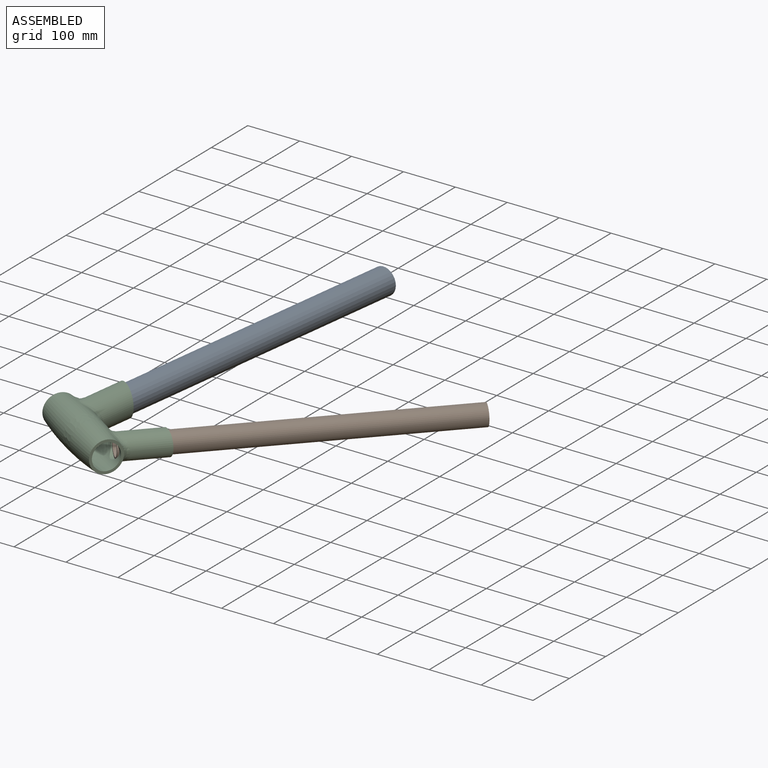
[diagram: assembled view]
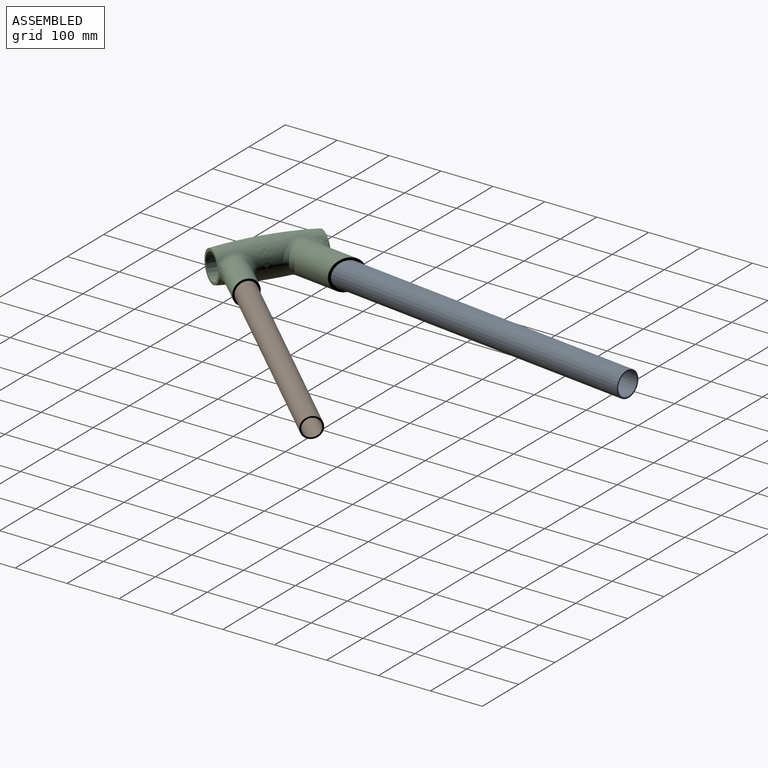
[diagram: assembled view, second angle]
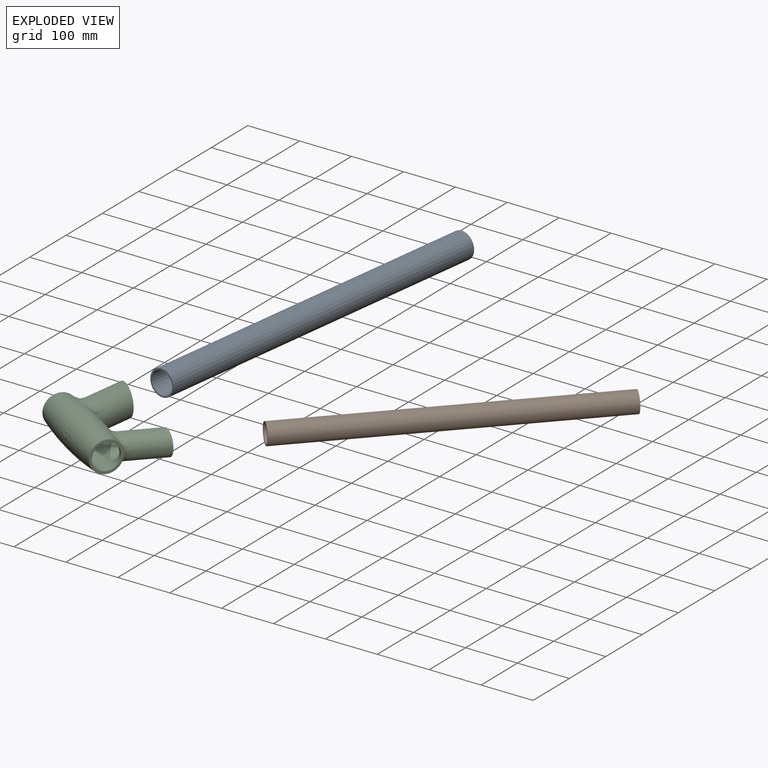
[diagram: exploded view]
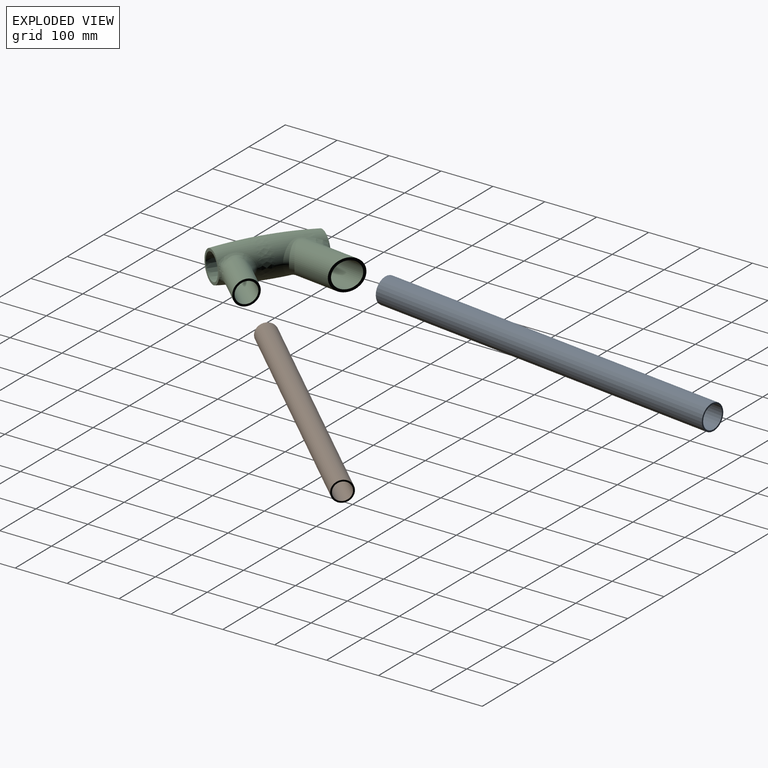
[diagram: exploded view, second angle]
ASSEMBLY  parts=3 mates=2
PART A: 4 faces, bbox 50x700x50 mm
  f0: cylinder r=22mm len=700mm, axis (0,1,0), area 96761.1mm2, adj f2,f3
  f1: cylinder r=25mm len=700mm, axis (0,1,0), area 109955.7mm2, adj f2,f3
  f2: plane 50x50mm, normal (0,-1,0), area 443mm2, adj f0,f1
  f3: plane 50x50mm, normal (0,1,0), area 443mm2, adj f0,f1
PART B: 4 faces, bbox 40x600x40 mm
  f0: cylinder r=17mm len=600mm, axis (0,1,0), area 64088.5mm2, adj f2,f3
  f1: cylinder r=20mm len=600mm, axis (0,1,0), area 75398.2mm2, adj f2,f3
  f2: plane 40x40mm, normal (0,-1,0), area 348.7mm2, adj f0,f1
  f3: plane 40x40mm, normal (0,1,0), area 348.7mm2, adj f0,f1
PART C: 15 faces, bbox 175x75x234.2 mm
  f0: revolved ~191x59.76mm, area 64609mm2, adj f5,f6,f13,f14
  f1: cylinder r=30mm len=129.25mm, axis (-0.91,0,-0.42), area 15600.9mm2, adj f7,f8,f12
  f2: cylinder r=24mm len=94.38mm, axis (-0.98,0,0.19), area 11134.2mm2, adj f3,f9,f10,f11
  f3: torus R=8.8mm, axis (-0.98,0,0.19), area 59.5mm2, adj f2,f11
  f4: revolved ~191x70.22mm, area 31566.3mm2, adj f5,f6,f7,f9
  f5: plane 62.57x62.57mm, normal (0,0,-1), area 863.9mm2, adj f0,f4,f10
  f6: plane 62.88x62.88mm, normal (0,0,1), area 863.9mm2, adj f0,f4,f8
  f7: bspline ~83.85x62.57mm, area 2701.5mm2, adj f1,f4,f8
  f8: bspline ~36.68x22.97mm, area 705.4mm2, adj f1,f6,f7
  f9: bspline ~67.06x53.64mm, area 2088.3mm2, adj f2,f4,f10
  f10: bspline ~36.87x18.18mm, area 485.7mm2, adj f2,f5,f9
  f11: plane 48.79x48mm, normal (1,0,0), area 560.3mm2, adj f2,f3,f13
  f12: plane 70.77x64.73mm, normal (1,0,0), area 950.8mm2, adj f1,f14
  f13: cylinder r=20mm len=102.3mm, axis (0.98,0,-0.19), area 11076.1mm2, adj f0,f11
  f14: cylinder r=25mm len=127.57mm, axis (0.91,0,0.42), area 15172.7mm2, adj f0,f12
PLACE A rot(axis=(0,0,-1),7.7deg) t=(171.3,459.74,92.94)mm
PLACE B rot(axis=(0,0,-1),43.5deg) t=(590.07,144.31,92.94)mm
PLACE C rot(axis=(-0.79,-0.43,0.43),103.4deg) t=(121.13,-286.48,92.94)mm
MATE fastened A.f0 <-> C.f1  axis (0.13,0.99,0) through (124.54,112.88,92.94)mm
MATE fastened B.f0 <-> C.f3  axis (0.69,0.73,0) through (383.75,-73.47,92.94)mm
